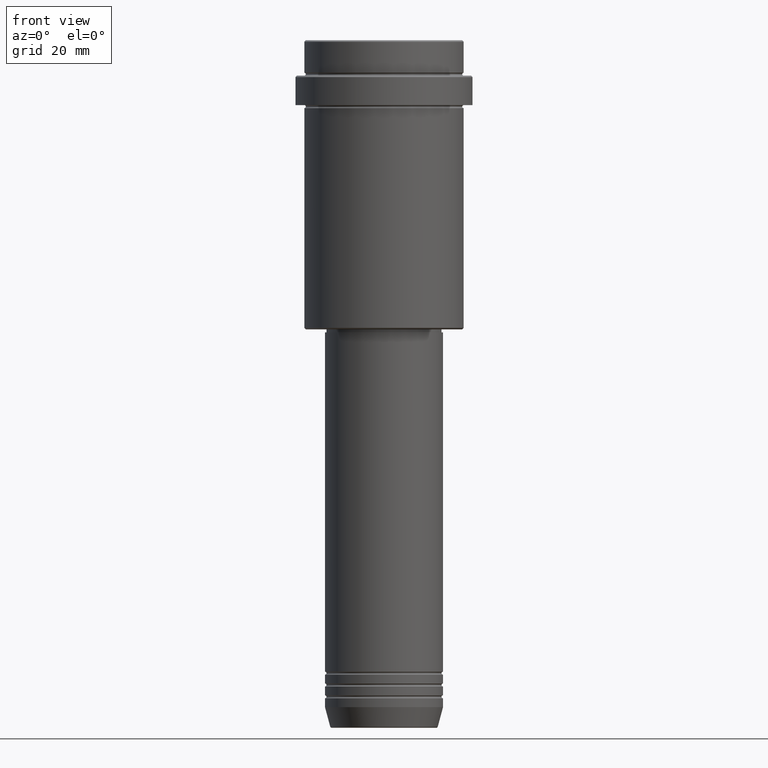
[diagram: clean part render]
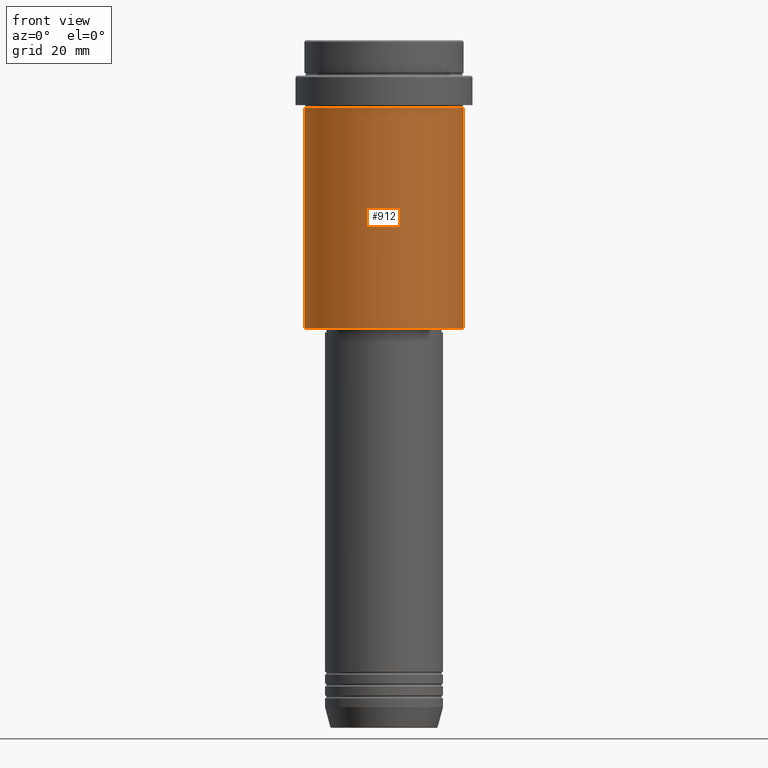
[diagram: same view with one face highlighted and labeled with its STEP entity id]
A machine part, front view. The second image highlights one B-rep face of the part: STEP entity #912.
In plain terms, the highlighted cylindrical surface (partial cylindrical patch) has radius 27 mm, axis along (-0, -0, 1).
Its self-contained STEP definition (entity closure, byte-faithful):
#31 = DIRECTION ( 'NONE',  ( -0.000000000000000000, -0.000000000000000000, 1.000000000000000000 ) ) ;
#79 = VERTEX_POINT ( 'NONE', #650 ) ;
#83 = VERTEX_POINT ( 'NONE', #1089 ) ;
#100 = DIRECTION ( 'NONE',  ( -0.000000000000000000, -0.000000000000000000, 1.000000000000000000 ) ) ;
#122 = LINE ( 'NONE', #1220, #832 ) ;
#169 = VERTEX_POINT ( 'NONE', #318 ) ;
#197 = ORIENTED_EDGE ( 'NONE', *, *, #631, .T. ) ;
#198 = ORIENTED_EDGE ( 'NONE', *, *, #596, .T. ) ;
#248 = CARTESIAN_POINT ( 'NONE',  ( -26.99999999999999645, 3.306546357697853339E-15, 0.000000000000000000 ) ) ;
#252 = AXIS2_PLACEMENT_3D ( 'NONE', #591, #1192, #1091 ) ;
#267 = DIRECTION ( 'NONE',  ( 1.000000000000000000, 0.000000000000000000, 0.000000000000000000 ) ) ;
#318 = CARTESIAN_POINT ( 'NONE',  ( 26.99999999999999645, 0.000000000000000000, -23.00000000000000000 ) ) ;
#478 = VERTEX_POINT ( 'NONE', #978 ) ;
#527 = CIRCLE ( 'NONE', #1283, 26.99999999999999645 ) ;
#529 = CARTESIAN_POINT ( 'NONE',  ( 0.000000000000000000, 0.000000000000000000, -97.49999999999995737 ) ) ;
#534 = DIRECTION ( 'NONE',  ( -1.000000000000000000, 0.000000000000000000, 0.000000000000000000 ) ) ;
#582 = DIRECTION ( 'NONE',  ( -0.000000000000000000, -0.000000000000000000, 1.000000000000000000 ) ) ;
#591 = CARTESIAN_POINT ( 'NONE',  ( 0.000000000000000000, 0.000000000000000000, 0.000000000000000000 ) ) ;
#596 = EDGE_CURVE ( 'NONE', #83, #478, #1253, .T. ) ;
#631 = EDGE_CURVE ( 'NONE', #478, #169, #122, .T. ) ;
#650 = CARTESIAN_POINT ( 'NONE',  ( -26.99999999999999645, 3.306546357697853339E-15, -23.00000000000000000 ) ) ;
#693 = VECTOR ( 'NONE', #31, 1000.000000000000000 ) ;
#725 = EDGE_LOOP ( 'NONE', ( #1316, #198, #197, #1240 ) ) ;
#819 = FACE_OUTER_BOUND ( 'NONE', #725, .T. ) ;
#832 = VECTOR ( 'NONE', #1227, 1000.000000000000000 ) ;
#912 = ADVANCED_FACE ( 'NONE', ( #819 ), #1243, .T. ) ;
#978 = CARTESIAN_POINT ( 'NONE',  ( 26.99999999999999645, 0.000000000000000000, -97.49999999999995737 ) ) ;
#1013 = AXIS2_PLACEMENT_3D ( 'NONE', #529, #100, #534 ) ;
#1089 = CARTESIAN_POINT ( 'NONE',  ( -26.99999999999999645, 3.306546357697853339E-15, -97.49999999999995737 ) ) ;
#1091 = DIRECTION ( 'NONE',  ( 1.000000000000000000, 0.000000000000000000, 0.000000000000000000 ) ) ;
#1092 = EDGE_CURVE ( 'NONE', #83, #79, #1127, .T. ) ;
#1127 = LINE ( 'NONE', #248, #693 ) ;
#1192 = DIRECTION ( 'NONE',  ( -0.000000000000000000, -0.000000000000000000, 1.000000000000000000 ) ) ;
#1220 = CARTESIAN_POINT ( 'NONE',  ( 26.99999999999999645, 0.000000000000000000, 0.000000000000000000 ) ) ;
#1227 = DIRECTION ( 'NONE',  ( -0.000000000000000000, -0.000000000000000000, 1.000000000000000000 ) ) ;
#1240 = ORIENTED_EDGE ( 'NONE', *, *, #1270, .F. ) ;
#1243 = CYLINDRICAL_SURFACE ( 'NONE', #252, 26.99999999999999645 ) ;
#1253 = CIRCLE ( 'NONE', #1013, 26.99999999999999645 ) ;
#1266 = CARTESIAN_POINT ( 'NONE',  ( 0.000000000000000000, 0.000000000000000000, -23.00000000000000000 ) ) ;
#1270 = EDGE_CURVE ( 'NONE', #79, #169, #527, .T. ) ;
#1283 = AXIS2_PLACEMENT_3D ( 'NONE', #1266, #582, #267 ) ;
#1316 = ORIENTED_EDGE ( 'NONE', *, *, #1092, .F. ) ;